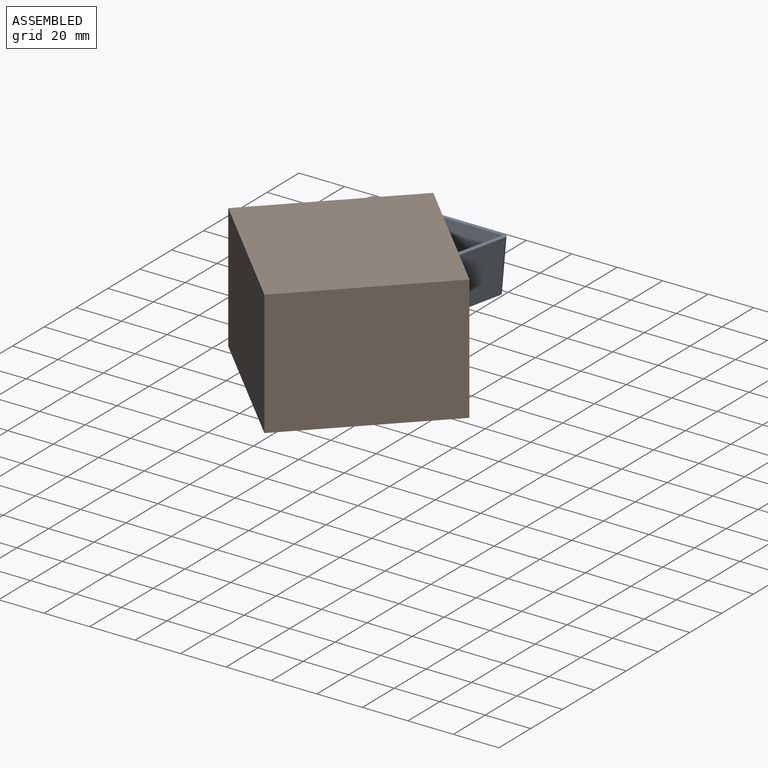
[diagram: assembled view]
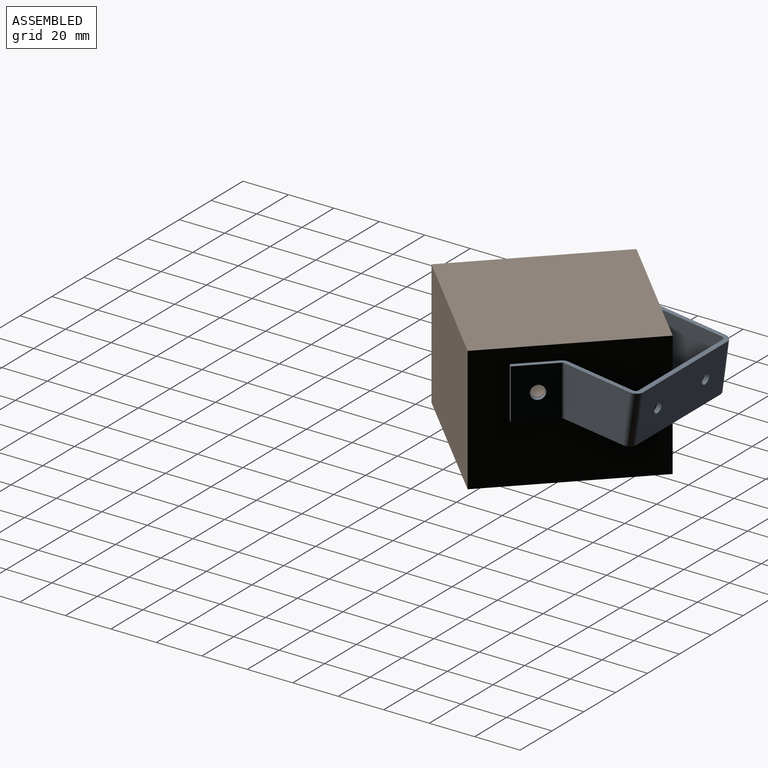
[diagram: assembled view, second angle]
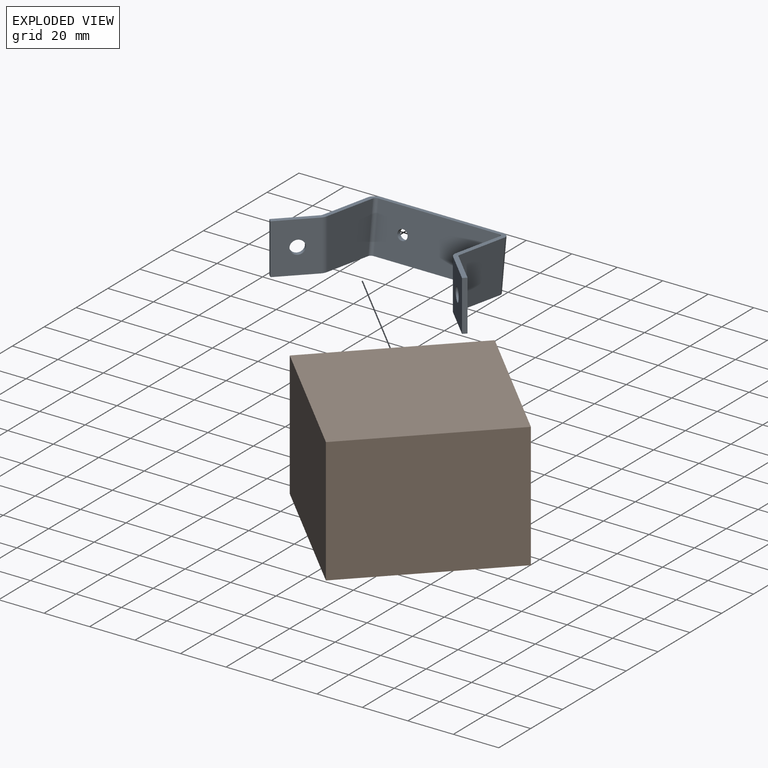
[diagram: exploded view]
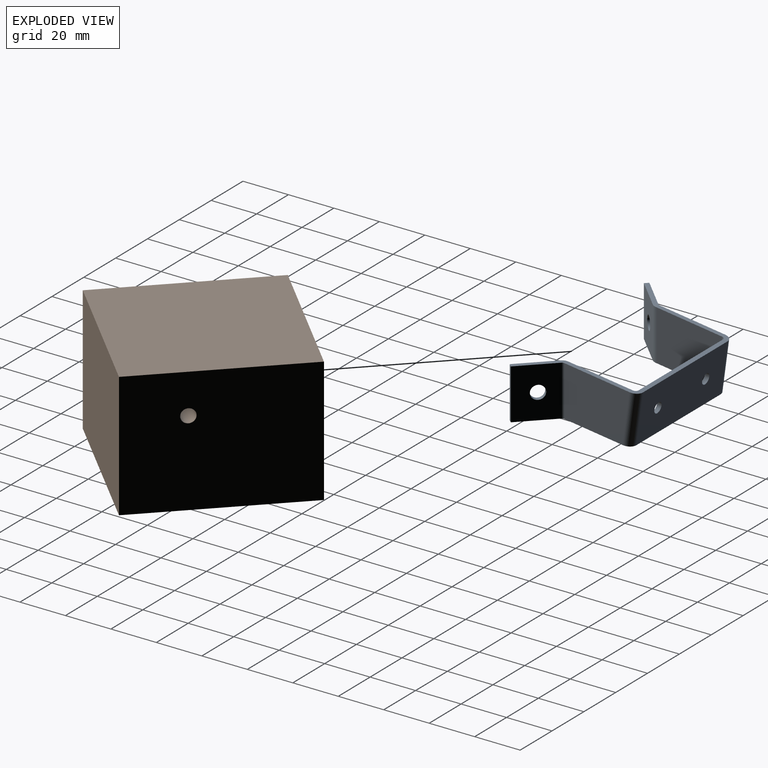
[diagram: exploded view, second angle]
ASSEMBLY  parts=2 mates=2
PART A: 42 faces, bbox 87.1x47.8x24.1 mm
  f0: plane 25.87x2mm, normal (0,0,-1), area 51.7mm2, adj f2,f3,f29,f38
  f1: plane 28.87x2mm, normal (0,0,1), area 57.7mm2, adj f2,f3,f28,f39
  f2: plane 28.87x22mm, normal (1,0,0), area 602.2mm2, adj f0,f1,f31,f40
  f3: plane 28.87x22mm, normal (-1,0,0), area 602.2mm2, adj f0,f1,f30,f41
  f4: plane 53x2mm, normal (0,0,-1), area 106mm2, adj f8,f9,f25,f29
  f5: plane 53x2mm, normal (0,0,1), area 106mm2, adj f8,f9,f24,f28
  f6: cylinder r=2.25mm len=4.5mm, axis (0,-1,0), area 28.3mm2, adj f8,f9
  f7: cylinder r=2.25mm len=4.5mm, axis (0,-1,0), area 28.3mm2, adj f8,f9
  f8: plane 53x22mm, normal (0,-1,0), area 1134.2mm2, adj f4,f5,f6,f7,f27,f31
  f9: plane 53x22mm, normal (0,1,0), area 1134.2mm2, adj f4,f5,f6,f7,f26,f30
  f10: plane 25.87x2mm, normal (0,0,-1), area 51.7mm2, adj f12,f13,f20,f25
  f11: plane 28.87x2mm, normal (0,0,1), area 57.7mm2, adj f12,f13,f21,f24
  f12: plane 28.87x22mm, normal (-1,0,0), area 602.2mm2, adj f10,f11,f22,f27
  f13: plane 28.87x22mm, normal (1,0,0), area 602.2mm2, adj f10,f11,f23,f26
  f14: plane 22.19x4.4mm, normal (0.71,-0.7,-0.1), area 44.4mm2, adj f15,f17,f18,f19
  f15: plane 14.53x14.4mm, normal (0,-0.14,0.99), area 37.1mm2, adj f14,f18,f19,f21
  f16: cylinder r=3mm len=6.16mm, axis (-0.71,-0.7,-0.1), area 37.7mm2, adj f18,f19
  f17: plane 14.53x14.4mm, normal (0,0.14,-0.99), area 37.1mm2, adj f14,f18,f19,f20
  f18: plane 23.77x16mm, normal (-0.71,-0.7,-0.1), area 383.6mm2, adj f14,f15,f16,f17,f22
  f19: plane 23.77x16mm, normal (0.71,0.7,0.1), area 383.6mm2, adj f14,f15,f16,f17,f23
  f20: bspline ~2.46x2.44mm, area 3.9mm2, adj f10,f17,f22,f23
  f21: bspline ~2.46x2.44mm, area 3.9mm2, adj f11,f15,f22,f23
  f22: cylinder r=3.5mm len=22.42mm, axis (0,0.14,-0.99), area 61mm2, adj f12,f18,f20,f21
  f23: cylinder r=1.5mm len=22.23mm, axis (0,0.14,-0.99), area 26.2mm2, adj f13,f19,f20,f21
  f24: plane 3.5x3.5mm, normal (0,0,1), area 7.9mm2, adj f5,f11,f26,f27
  f25: plane 3.5x3.5mm, normal (0,0,-1), area 7.9mm2, adj f4,f10,f26,f27
  f26: cylinder r=3.5mm len=22mm, axis (0,0,1), area 121mm2, adj f9,f13,f24,f25
  f27: cylinder r=1.5mm len=22mm, axis (0,0,1), area 51.8mm2, adj f8,f12,f24,f25
  f28: plane 3.5x3.5mm, normal (0,0,1), area 7.9mm2, adj f1,f5,f30,f31
  f29: plane 3.5x3.5mm, normal (0,0,-1), area 7.9mm2, adj f0,f4,f30,f31
  f30: cylinder r=3.5mm len=22mm, axis (0,0,1), area 121mm2, adj f3,f9,f28,f29
  f31: cylinder r=1.5mm len=22mm, axis (0,0,1), area 51.8mm2, adj f2,f8,f28,f29
  f32: plane 22.19x4.4mm, normal (-0.71,-0.7,-0.1), area 44.4mm2, adj f33,f35,f36,f37
  f33: plane 14.53x14.4mm, normal (0,0.14,-0.99), area 37.1mm2, adj f32,f36,f37,f38
  f34: cylinder r=3mm len=6.16mm, axis (0.71,-0.7,-0.1), area 37.7mm2, adj f36,f37
  f35: plane 14.53x14.4mm, normal (0,-0.14,0.99), area 37.1mm2, adj f32,f36,f37,f39
  f36: plane 23.77x16mm, normal (0.71,-0.7,-0.1), area 383.6mm2, adj f32,f33,f34,f35,f40
  f37: plane 23.77x16mm, normal (-0.71,0.7,0.1), area 383.6mm2, adj f32,f33,f34,f35,f41
  f38: bspline ~2.46x2.44mm, area 3.9mm2, adj f0,f33,f40,f41
  f39: bspline ~2.46x2.44mm, area 3.9mm2, adj f1,f35,f40,f41
  f40: cylinder r=3.5mm len=22.42mm, axis (0,0.14,-0.99), area 61mm2, adj f2,f36,f38,f39
  f41: cylinder r=1.5mm len=22.23mm, axis (0,0.14,-0.99), area 26.2mm2, adj f3,f37,f38,f39
PART B: 10 faces, bbox 106.1x106.1x55 mm
  f0: plane 55x53.03mm, normal (0.71,-0.71,0), area 4125mm2, adj f1,f3,f4,f5
  f1: plane 55x53.03mm, normal (0.71,0.71,0), area 4096.7mm2, adj f0,f2,f4,f5,f6
  f2: plane 55x53.03mm, normal (-0.71,0.71,0), area 4096.7mm2, adj f1,f3,f4,f5,f8
  f3: plane 55x53.03mm, normal (-0.71,-0.71,0), area 4125mm2, adj f0,f2,f4,f5
  f4: plane 106.07x106.07mm, normal (0,0,1), area 5625mm2, adj f0,f1,f2,f3
  f5: plane 106.07x106.07mm, normal (0,0,-1), area 5625mm2, adj f0,f1,f2,f3
  f6: cylinder r=3mm len=21.92mm, axis (0.71,0.71,0), area 471.2mm2, adj f1,f7
  f7: plane 6x4.24mm, normal (0.71,0.71,0), area 28.3mm2, adj f6
  f8: cylinder r=3mm len=21.92mm, axis (-0.71,0.71,0), area 471.2mm2, adj f2,f9
  f9: plane 6x4.24mm, normal (-0.71,0.71,0), area 28.3mm2, adj f8
PLACE A rot(axis=(-1,0,0),7.8deg) t=(0,-3.86,30.35)mm
PLACE B t=(0,0,25)mm
MATE planar A.f34 <-> B.f2  axis (0.71,-0.71,0) through (-35.07,17.96,37.4)mm
MATE planar A.f16 <-> B.f1  axis (-0.71,-0.71,0) through (35.07,17.96,37.4)mm
